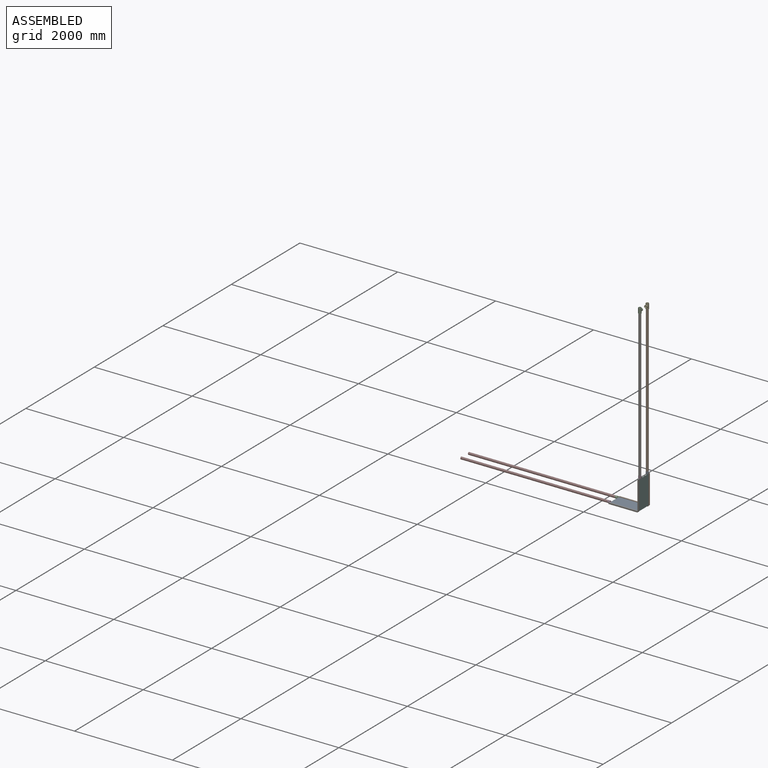
[diagram: assembled view]
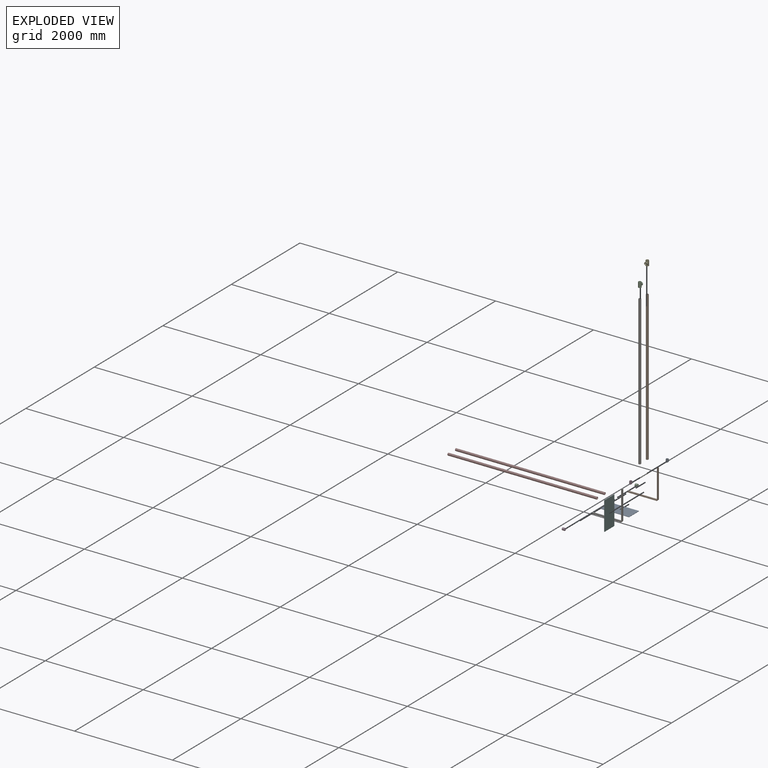
[diagram: exploded view]
GUIDED TOUR — MATED ASSEMBLY (Onshape document 8e0221e9044c78b43de1cfef, AutoMate assembly 8e0221e9044c78b43de1cfef_dc690e27e707710a3b595e1c_df8777a2fb92f2d2d3563340_default)

This assembly has 16 components, labeled P0..P15 below (a component is one placed occurrence of a part; the same part can appear more than once), held together by 22 mates. A mate is a constraint between two components; its type names the relative motion it leaves free:
  CYLINDRICAL — leaves both rotation about and translation along the listed axis free,
  PLANAR — leaves sliding in the plane through the listed point (normal = the listed direction) and rotation about that normal free.
Axis/direction vectors are unit vectors and 'through' points are millimeter coordinates, both in the assembly's world frame.

MATES
  1. CYLINDRICAL "Cylindrical 1": P13 <-> P14, axis (0.000, 1.000, 0.000) through (-967.79, 1430.48, -1423.84) mm
  2. PLANAR "Planar 6": P4 <-> P1, direction (0.000, 1.000, 0.000) through (-366.64, 1582.88, -822.67) mm
  3. CYLINDRICAL "Cylindrical 9": P12 <-> P9, axis (0.000, 0.000, 1.000) through (-366.64, 1526.75, 2232.19) mm
  4. CYLINDRICAL "Cylindrical 3": P8 <-> P4, axis (0.000, -1.000, 0.000) through (-366.64, 1508.97, -822.67) mm
  5. PLANAR "Planar 3": P1 <-> P0, direction (0.000, -1.000, 0.000) through (-670.07, 1565.10, -1425.53) mm
  6. CYLINDRICAL "Cylindrical 7": P10 <-> P13, axis (0.000, 1.000, 0.000) through (-967.79, 1553.93, -1423.84) mm
  7. PLANAR "Planar 7": P9 <-> P8, direction (0.000, 0.000, -1.000) through (-366.64, 1526.75, -815.81) mm
  8. PLANAR "Planar 4": P13 <-> P1, direction (0.000, 1.000, 0.000) through (-967.79, 1582.88, -1423.84) mm
  9. CYLINDRICAL "Cylindrical 5": P7 <-> P10, axis (1.000, 0.000, 0.000) through (-2498.65, 1536.15, -1423.84) mm
  10. PLANAR "Planar 8": P15 <-> P11, direction (1.000, 0.000, 0.000) through (-974.65, 1315.27, -1423.84) mm
  11. CYLINDRICAL "Cylindrical 6": P6 <-> P3, axis (0.000, 0.000, -1.000) through (-366.64, 1309.18, 708.19) mm
  12. CYLINDRICAL "Cylindrical 6": P15 <-> P11, axis (1.000, 0.000, 0.000) through (-2498.65, 1315.27, -1423.84) mm
  13. PLANAR "Planar 1": P5 <-> P14, direction (0.000, -1.000, 0.000) through (-365.68, 1275.54, -1121.14) mm
  14. PLANAR "Planar 2": P0 <-> P14, direction (0.000, -1.000, 0.000) through (-670.07, 1275.54, -1425.53) mm
  15. CYLINDRICAL "Cylindrical 5": P9 <-> P8, axis (0.000, 0.000, -1.000) through (-366.64, 1526.75, 708.19) mm
  16. PLANAR "Planar 7": P7 <-> P10, direction (1.000, 0.000, 0.000) through (-974.65, 1536.15, -1423.84) mm
  17. CYLINDRICAL "Cylindrical 8": P11 <-> P13, axis (0.000, 1.000, 0.000) through (-967.79, 1333.96, -1423.84) mm
  18. PLANAR "Planar 8": P6 <-> P3, direction (0.000, 0.000, -1.000) through (-366.64, 1309.18, -815.81) mm
  19. CYLINDRICAL "Cylindrical 4": P3 <-> P4, axis (0.000, 1.000, 0.000) through (-366.64, 1327.87, -822.67) mm
  20. CYLINDRICAL "Cylindrical 10": P2 <-> P6, axis (0.000, 0.000, 1.000) through (-366.64, 1309.18, 2232.19) mm
  21. CYLINDRICAL "Cylindrical 2": P4 <-> P14, axis (0.000, 1.000, 0.000) through (-366.64, 1278.08, -822.67) mm
  22. PLANAR "Planar 9": P9 <-> P12, direction (0.000, 0.000, 1.000) through (-366.64, 1526.75, 2232.19) mm

ASSEMBLY ORDER
  1. P9 — the base component [order verified]
  2. P6 [order verified]
  3. P3 [order verified]
  4. P8 [order verified]
  5. P12 [order verified]
  6. P2 [order verified]
  7. P15 [order verified]
  8. P7 [order verified]
  9. P11 [order verified]
  10. P10 [order verified]
  11. P5 [order verified]
  12. P4 [order verified]
  13. P13 [order verified]
  14. P0 [order verified]
  15. P14 [order verified]
  16. P1 [order verified]
Order-tag legend:
  [order verified] — this step's position reverses a verified removal order: the component was checked to insert without passing through the ones already placed.

Of the 16 components, 8 carry the full construction recipe — the FeatureScript program that regenerates the part's solid from scratch; the rest are supplied as boundary geometry only.
Because this assembly has more than 12 components, the tour below covers the 12 most significant ones individually (every recipe-attached component first, then the largest by part volume), in assembly order; the remaining 4 are summarized together in a grouped section at the end.
Each toured component is shown spotlighted twice — in the assembled view, then in the exploded view, where a leader line traces a displaced component back to its assembled socket (saturated green if recipe-attached, orange if geometry-only; every other component desaturated gray) — followed by its recipe or geometry summary and the mates that hold it.
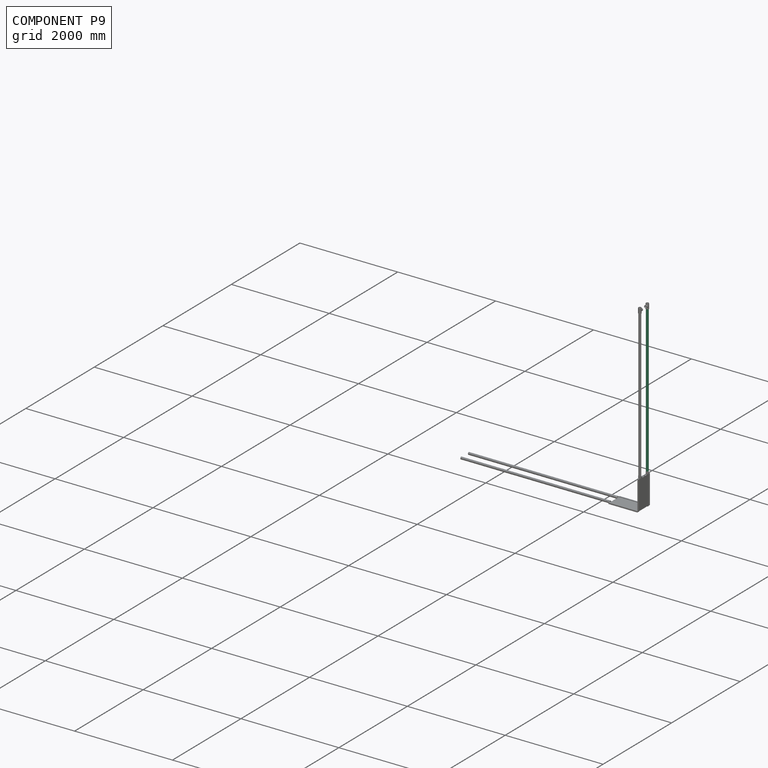
[diagram: component P9 — assembled]
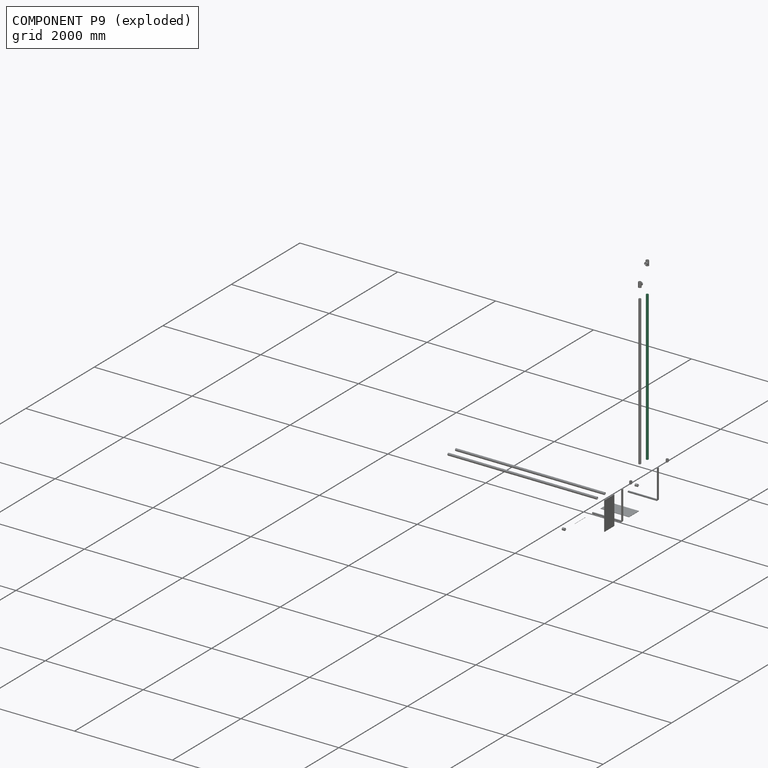
[diagram: component P9 — exploded]
COMPONENT P9 — same part as P6 (CADFS 00972674); its construction recipe is shown at P6.
Held by: CYLINDRICAL mate "Cylindrical 9" to P12; PLANAR mate "Planar 7" to P8; CYLINDRICAL mate "Cylindrical 5" to P8; PLANAR mate "Planar 9" to P12.
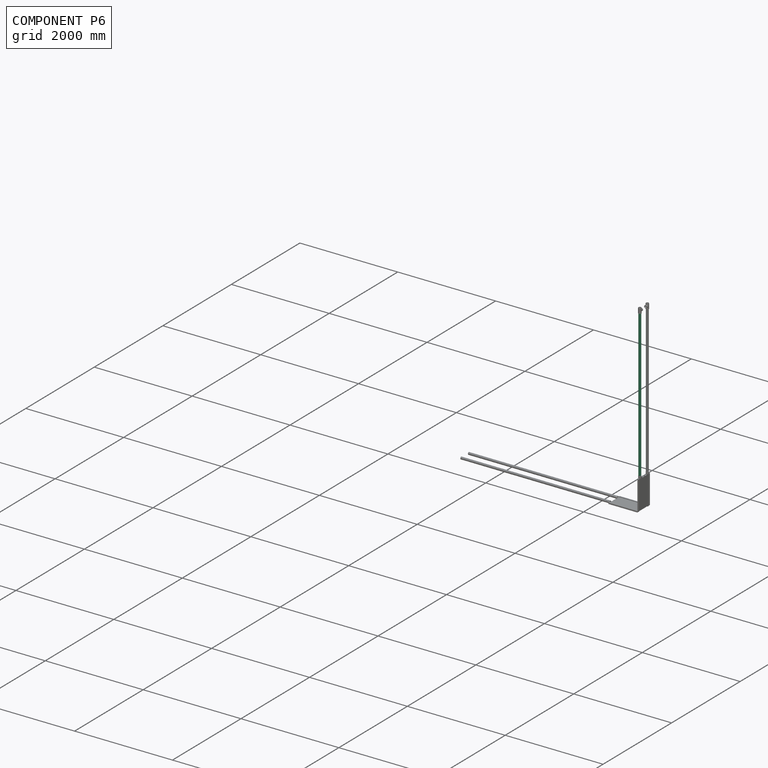
[diagram: component P6 — assembled]
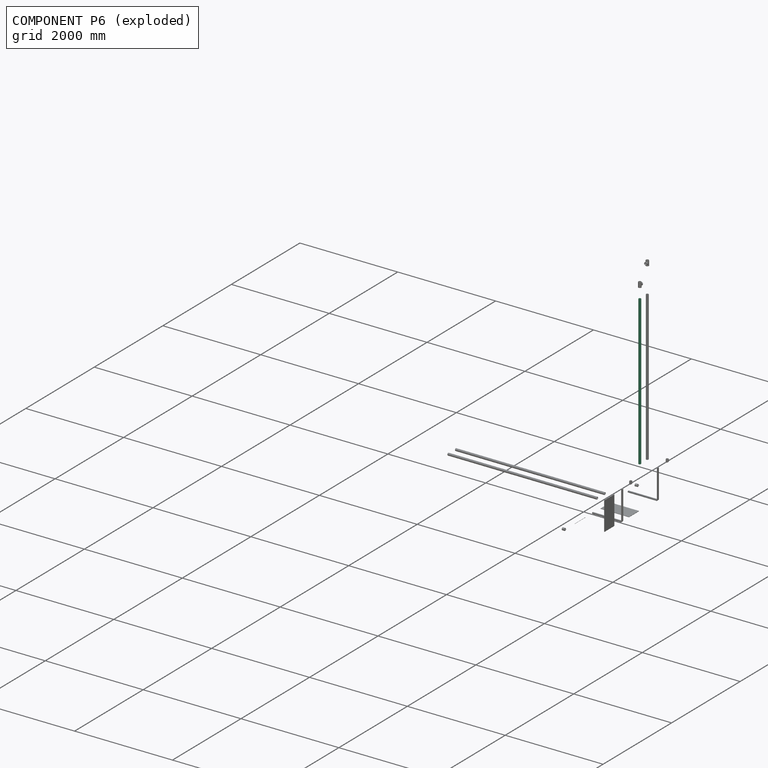
[diagram: component P6 — exploded]
COMPONENT P6 — recipe-attached (CADFS 00972674, mesh-verified: the recipe's output STEP matches this component's geometry to below the mesh-comparison resolution (tessellation chordal tolerance ~4.57 mm)).
Held by: CYLINDRICAL mate "Cylindrical 6" to P3; PLANAR mate "Planar 8" to P3; CYLINDRICAL mate "Cylindrical 10" to P2.
Construction recipe (FeatureScript — the CAD program that rebuilds this solid; sketch coordinates are in the units given by the * unit suffixes, e.g. mm):

FeatureScript 1511;
import(path : "onshape/std/geometry.fs", version : "1511.0");
import(path : "onshape/std/common.fs", version : "1511.0");
const mm = millimeter;
const VERTEX = EntityType.VERTEX;
const EDGE = EntityType.EDGE;
const FACE = EntityType.FACE;
const BODY = EntityType.BODY;
function v(x, y){return vector(x, y);}
function OD(order){return orderDisambiguation(order);}
function OSD(set){return originalSetDisambiguation(set);}
function TD(topology){return topologyDisambiguation(topology);}
function TDD(query){return trueDependencyDisambiguation(query);}
function sQuery(a, b, c) {return sketchEntityQuery(a, b, c);}

annotation { "Feature Type Name" : "Feature", "Feature Type Description" : "" }
export const myFeature = defineFeature(function(context is Context, id is Id, definition is map)
    precondition{}
    {
        {
            var Q0;
            Q0=qCreatedBy(makeId("Top.planeOp"),FACE);
            var sketch = newSketch(context, id + "F0", { "sketchPlane" : qUnion([Q0])});
            skCircle(sketch, "E0", {"center": v(0, 0) * mm, "radius": 24.13 * mm});
            skCircle(sketch, "E1", {"center": v(0, 0) * mm, "radius": 20.45 * mm});
            skSolve(sketch);
        }
        {
            var Q0;
            Q0 = qSketchRegion(id + "F0", true);
            extrude(context, id + "F1", {"entities" : qUnion([Q0]), "depth" : 3048 * mm, "offsetDistance" : 25.4 * mm});
        }
    });
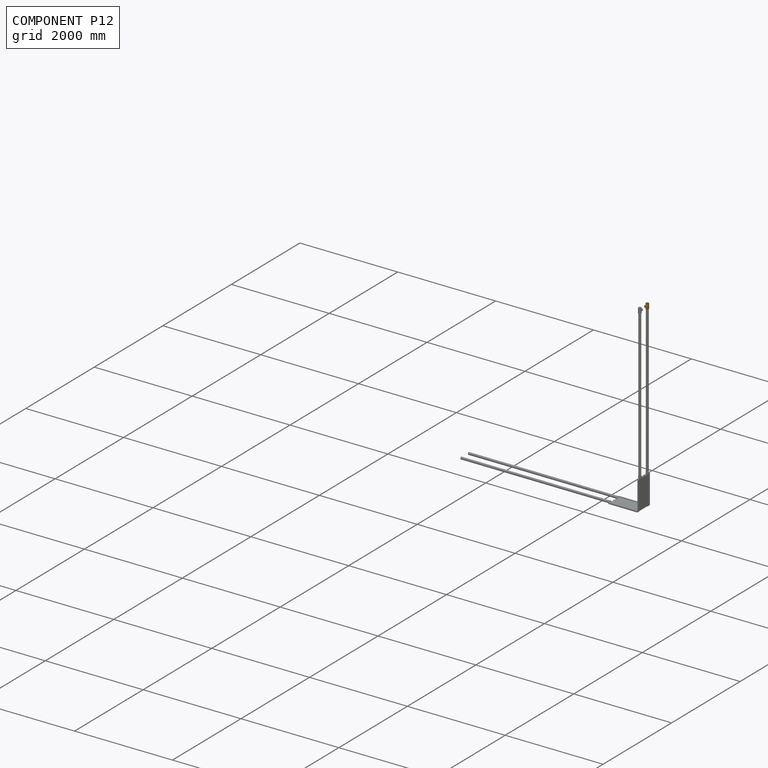
[diagram: component P12 — assembled]
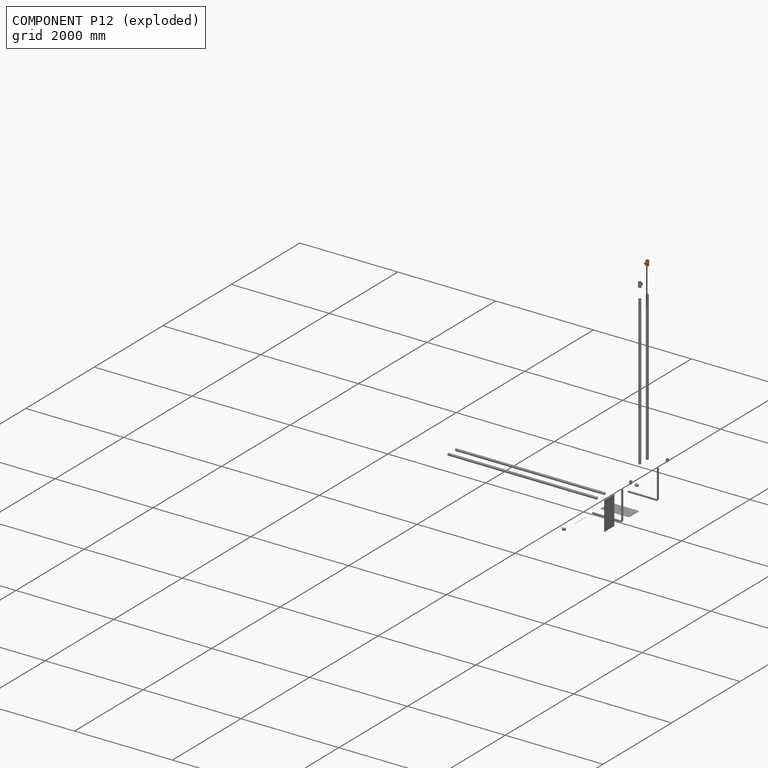
[diagram: component P12 — exploded]
COMPONENT P12 — geometry summary (no construction recipe available for this part):
  bounding box: 101.6 x 81.3 x 61.0 mm
  B-rep topology: 1 solid, 24 faces, 96 edges
  volume: 116307 mm^3 (23% of its bounding box)
  symmetry: 2-fold rotationally symmetric about the z axis; mirror-symmetric across its x mid-plane, y mid-plane
Held by: CYLINDRICAL mate "Cylindrical 9" to P9; PLANAR mate "Planar 9" to P9.
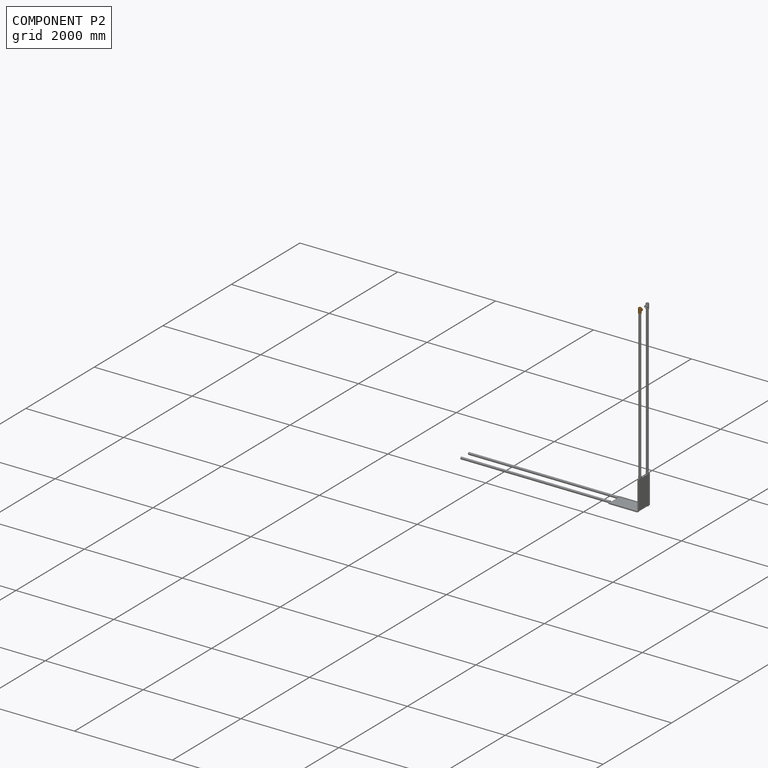
[diagram: component P2 — assembled]
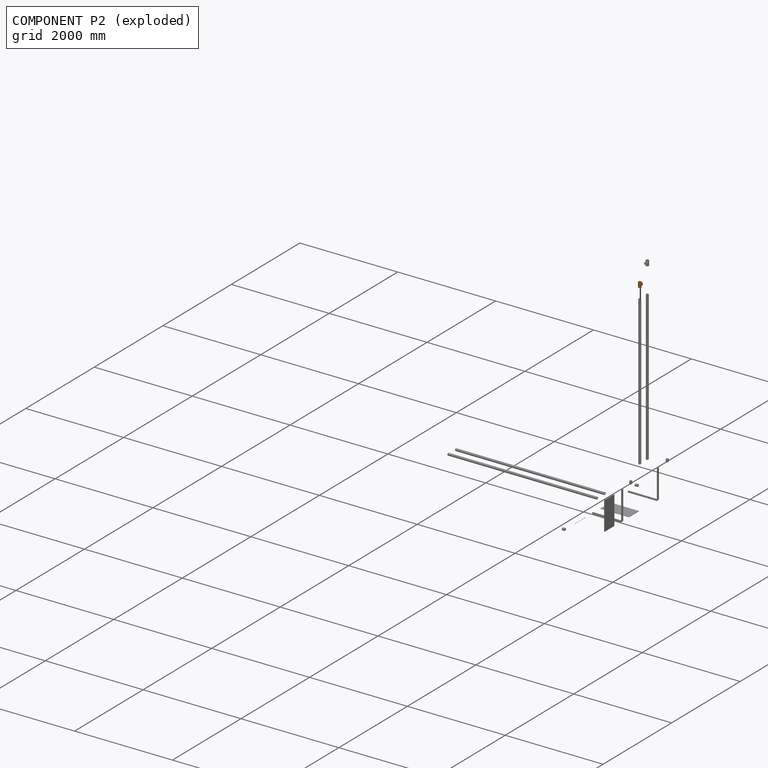
[diagram: component P2 — exploded]
COMPONENT P2 — geometry summary (no construction recipe available for this part):
  bounding box: 101.6 x 81.3 x 61.0 mm
  B-rep topology: 1 solid, 24 faces, 96 edges
  volume: 116307 mm^3 (23% of its bounding box)
  symmetry: 2-fold rotationally symmetric about the z axis; mirror-symmetric across its x mid-plane, y mid-plane
Held by: CYLINDRICAL mate "Cylindrical 10" to P6.
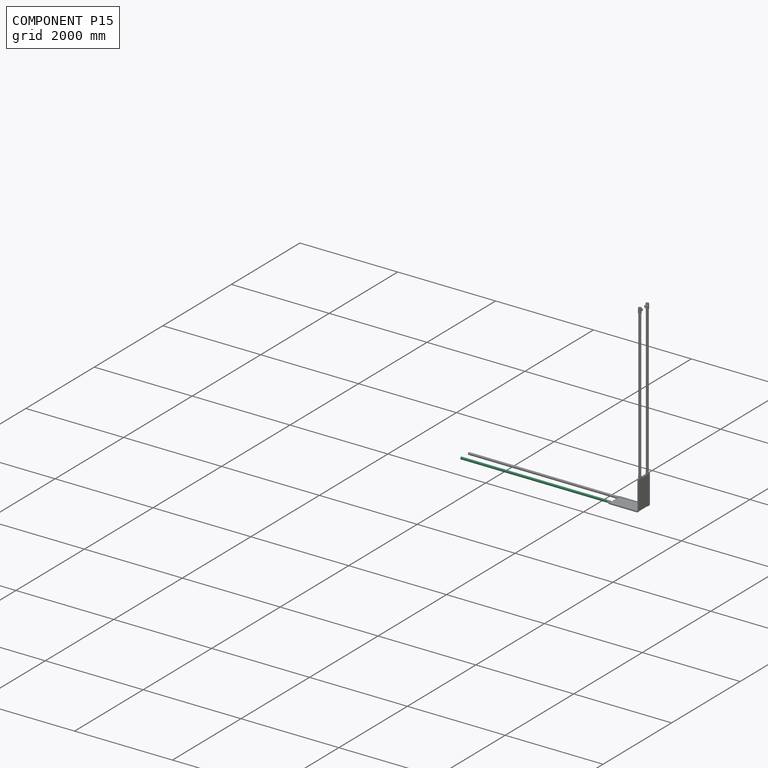
[diagram: component P15 — assembled]
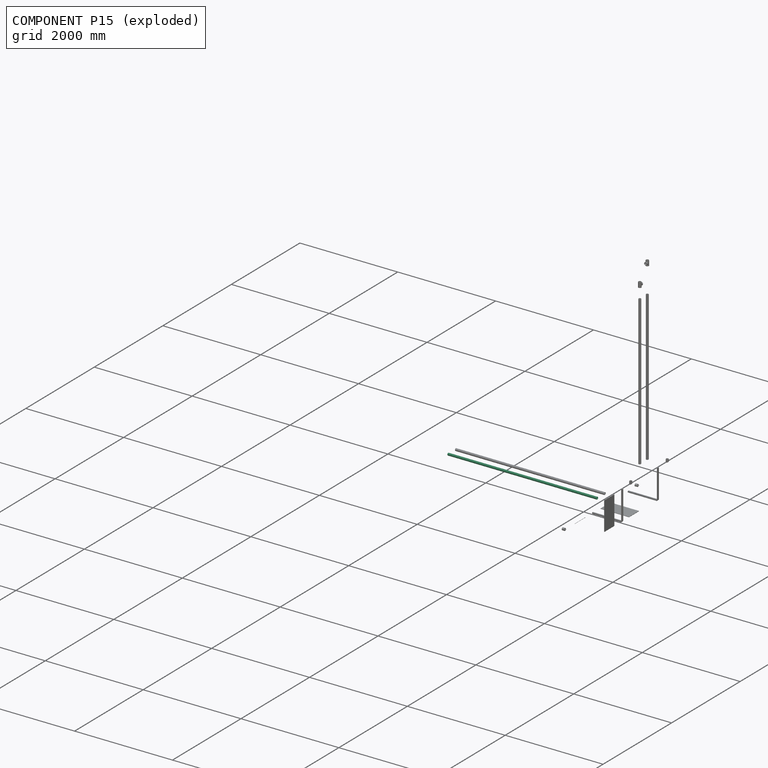
[diagram: component P15 — exploded]
COMPONENT P15 — same part as P6 (CADFS 00972674); its construction recipe is shown at P6.
Held by: PLANAR mate "Planar 8" to P11; CYLINDRICAL mate "Cylindrical 6" to P11.
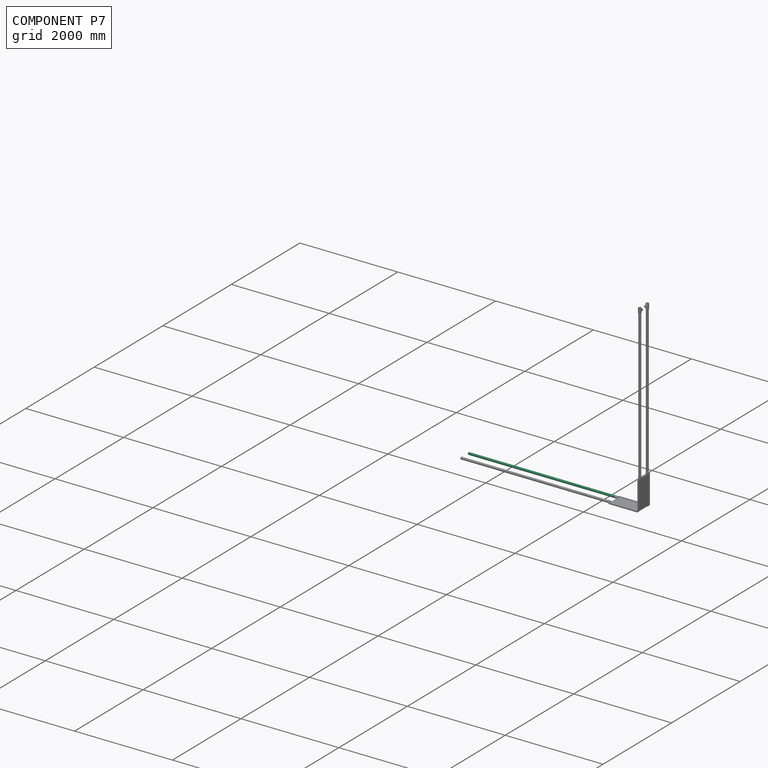
[diagram: component P7 — assembled]
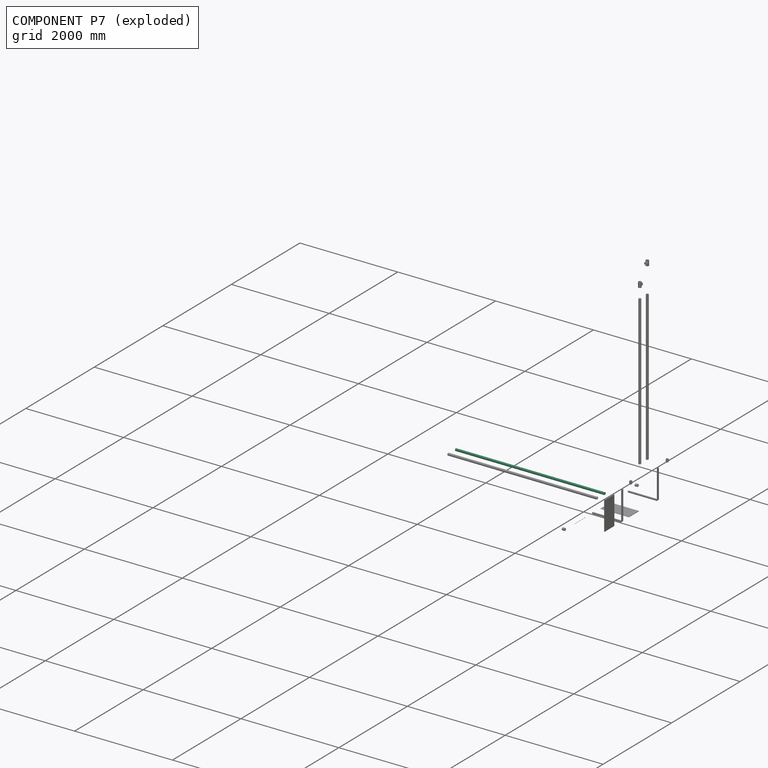
[diagram: component P7 — exploded]
COMPONENT P7 — same part as P6 (CADFS 00972674); its construction recipe is shown at P6.
Held by: CYLINDRICAL mate "Cylindrical 5" to P10; PLANAR mate "Planar 7" to P10.
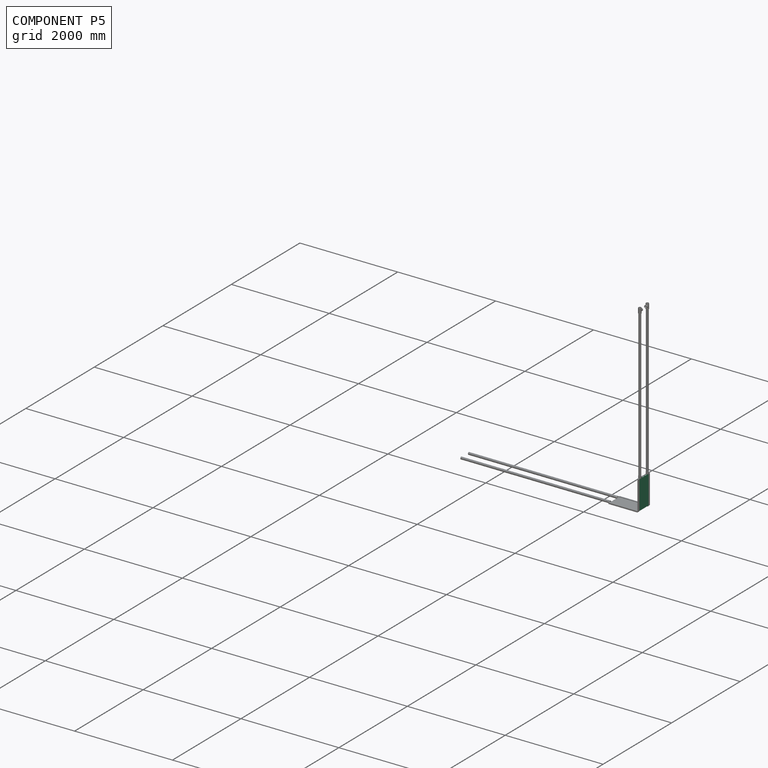
[diagram: component P5 — assembled]
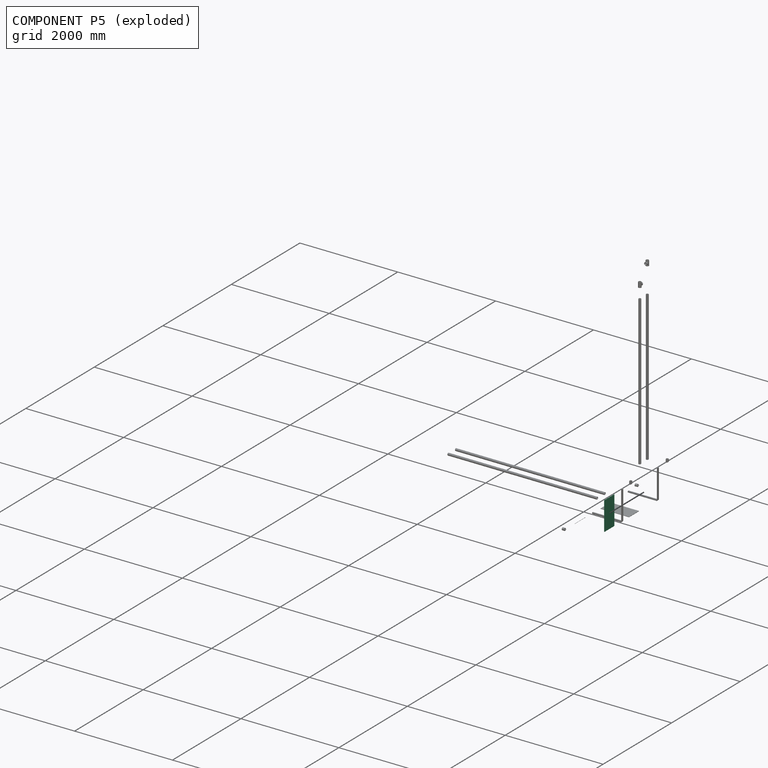
[diagram: component P5 — exploded]
COMPONENT P5 — same part as P0 (CADFS 00972740); its construction recipe is shown at P0.
Held by: PLANAR mate "Planar 1" to P14.
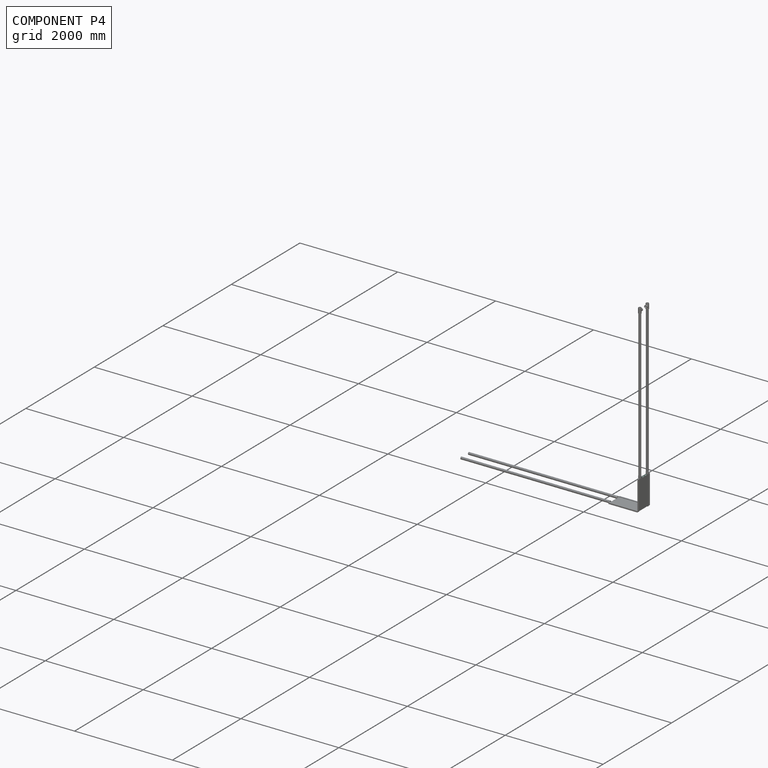
[diagram: component P4 — assembled]
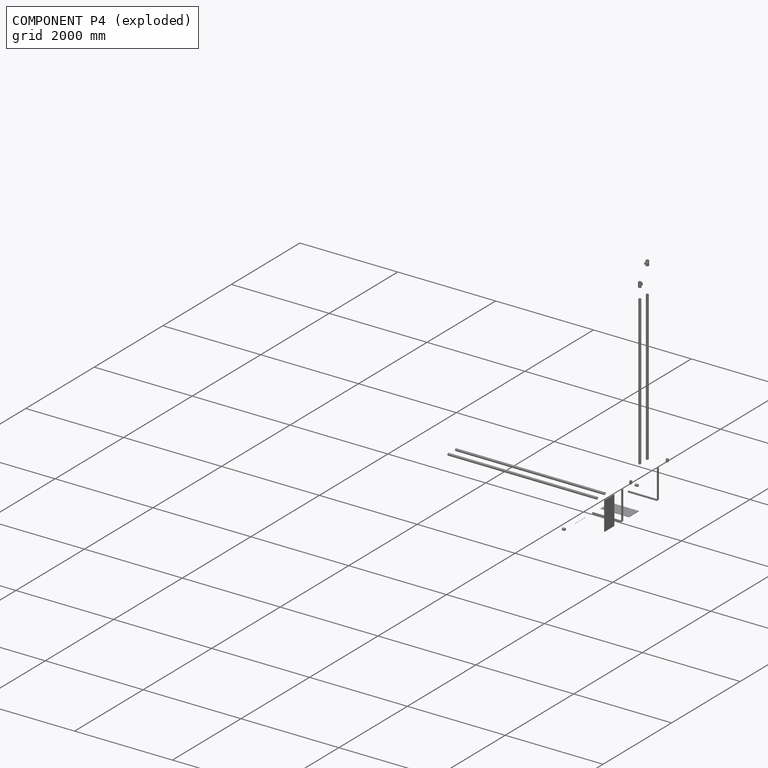
[diagram: component P4 — exploded]
COMPONENT P4 — recipe-attached (CADFS 00972745, mesh-verified: the recipe's output STEP matches this component's geometry to below the mesh-comparison resolution (tessellation chordal tolerance ~0.457 mm)).
Held by: PLANAR mate "Planar 6" to P1; CYLINDRICAL mate "Cylindrical 3" to P8; CYLINDRICAL mate "Cylindrical 4" to P3; CYLINDRICAL mate "Cylindrical 2" to P14.
Construction recipe (FeatureScript — the CAD program that rebuilds this solid; sketch coordinates are in the units given by the * unit suffixes, e.g. mm):

FeatureScript 1511;
import(path : "onshape/std/geometry.fs", version : "1511.0");
import(path : "onshape/std/common.fs", version : "1511.0");
const mm = millimeter;
const VERTEX = EntityType.VERTEX;
const EDGE = EntityType.EDGE;
const FACE = EntityType.FACE;
const BODY = EntityType.BODY;
function v(x, y){return vector(x, y);}
function OD(order){return orderDisambiguation(order);}
function OSD(set){return originalSetDisambiguation(set);}
function TD(topology){return topologyDisambiguation(topology);}
function TDD(query){return trueDependencyDisambiguation(query);}
function sQuery(a, b, c) {return sketchEntityQuery(a, b, c);}

annotation { "Feature Type Name" : "Feature", "Feature Type Description" : "" }
export const myFeature = defineFeature(function(context is Context, id is Id, definition is map)
    precondition{}
    {
        {
            var Q0;
            Q0=qCreatedBy(makeId("Front.planeOp"),FACE);
            var sketch = newSketch(context, id + "F0", { "sketchPlane" : qUnion([Q0])});
            skCircle(sketch, "E0", {"center": v(1.26, 0) * mm, "radius": 2.54 * mm});
            skSolve(sketch);
        }
        {
            var Q0;
            Q0 = qSketchRegion(id + "F0", true);
            extrude(context, id + "F1", {"entities" : qUnion([Q0]), "depth" : 304.8 * mm, "offsetDistance" : 25.4 * mm});
        }
    });
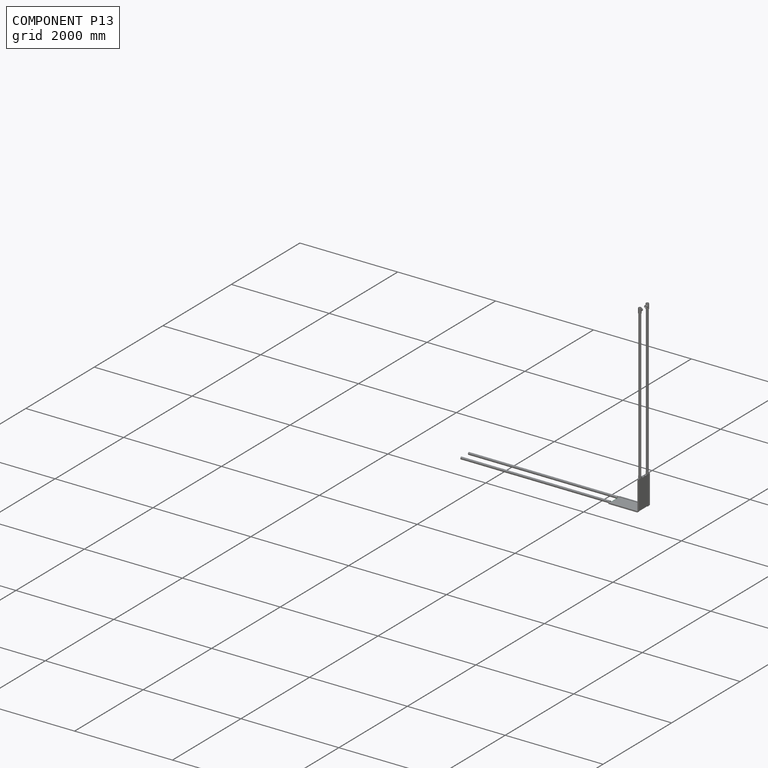
[diagram: component P13 — assembled]
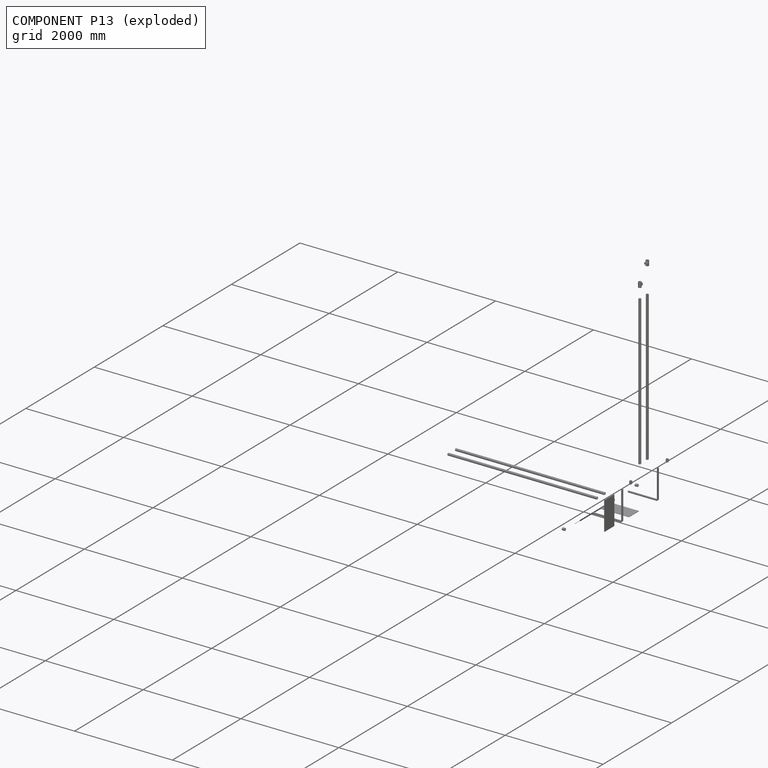
[diagram: component P13 — exploded]
COMPONENT P13 — same part as P4 (CADFS 00972745); its construction recipe is shown at P4.
Held by: CYLINDRICAL mate "Cylindrical 1" to P14; CYLINDRICAL mate "Cylindrical 7" to P10; PLANAR mate "Planar 4" to P1; CYLINDRICAL mate "Cylindrical 8" to P11.
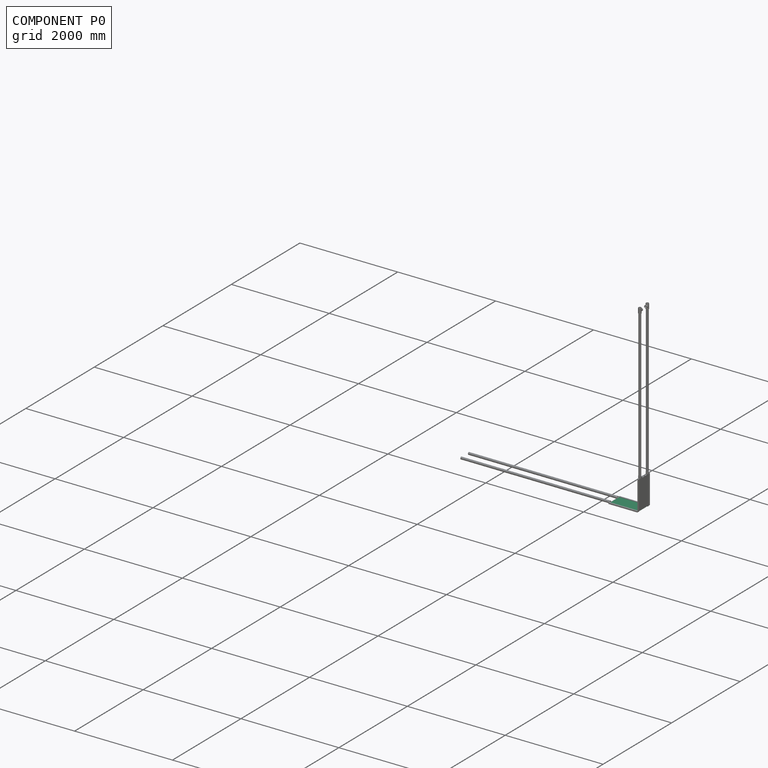
[diagram: component P0 — assembled]
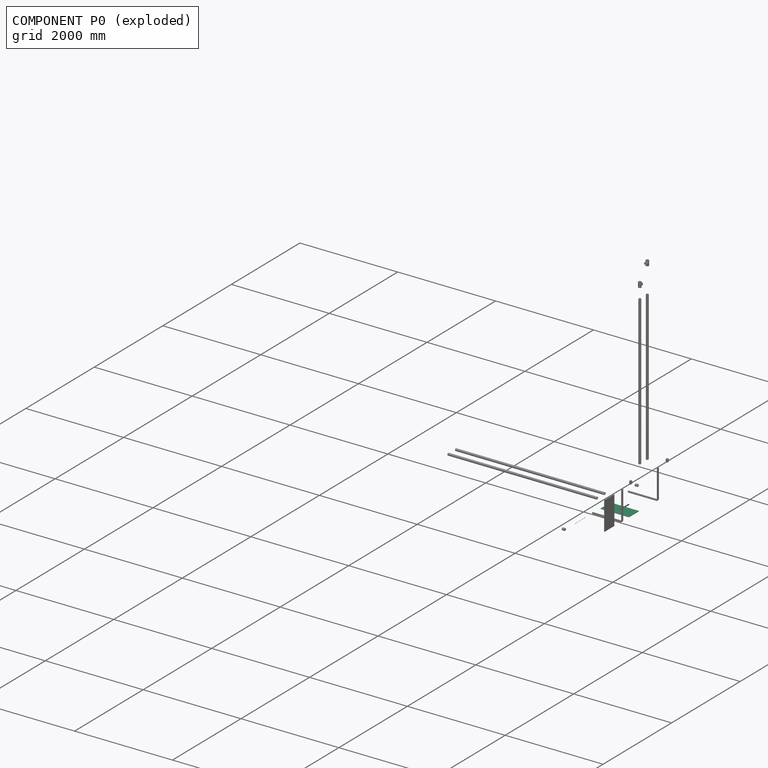
[diagram: component P0 — exploded]
COMPONENT P0 — recipe-attached (CADFS 00972740, mesh-verified: the recipe's output STEP matches this component's geometry to below the mesh-comparison resolution (tessellation chordal tolerance ~0.977 mm)).
Held by: PLANAR mate "Planar 3" to P1; PLANAR mate "Planar 2" to P14.
Construction recipe (FeatureScript — the CAD program that rebuilds this solid; sketch coordinates are in the units given by the * unit suffixes, e.g. mm):

FeatureScript 1511;
import(path : "onshape/std/geometry.fs", version : "1511.0");
import(path : "onshape/std/common.fs", version : "1511.0");
const mm = millimeter;
const VERTEX = EntityType.VERTEX;
const EDGE = EntityType.EDGE;
const FACE = EntityType.FACE;
const BODY = EntityType.BODY;
function v(x, y){return vector(x, y);}
function OD(order){return orderDisambiguation(order);}
function OSD(set){return originalSetDisambiguation(set);}
function TD(topology){return topologyDisambiguation(topology);}
function TDD(query){return trueDependencyDisambiguation(query);}
function sQuery(a, b, c) {return sketchEntityQuery(a, b, c);}

annotation { "Feature Type Name" : "Feature", "Feature Type Description" : "" }
export const myFeature = defineFeature(function(context is Context, id is Id, definition is map)
    precondition{}
    {
        {
            var Q0;
            Q0=qCreatedBy(makeId("Front.planeOp"),FACE);
            var sketch = newSketch(context, id + "F0", { "sketchPlane" : qUnion([Q0])});
            skLineSegment(sketch, "E0.bottom", {"start": v(5.83, 0) * mm, "end": v(295.4, 0) * mm});
            skLineSegment(sketch, "E0.top", {"start": v(5.83, 583.39) * mm, "end": v(295.4, 583.39) * mm});
            skLineSegment(sketch, "E0.left", {"start": v(5.83, 0) * mm, "end": v(5.83, 583.39) * mm});
            skLineSegment(sketch, "E0.right", {"start": v(295.4, 0) * mm, "end": v(295.4, 583.39) * mm});
            skSolve(sketch);
        }
        {
            var Q0;
            Q0 = qSketchRegion(id + "F0", true);
            extrude(context, id + "F1", {"entities" : qUnion([Q0]), "depth" : 7.62 * mm, "offsetDistance" : 25.4 * mm});
        }
    });
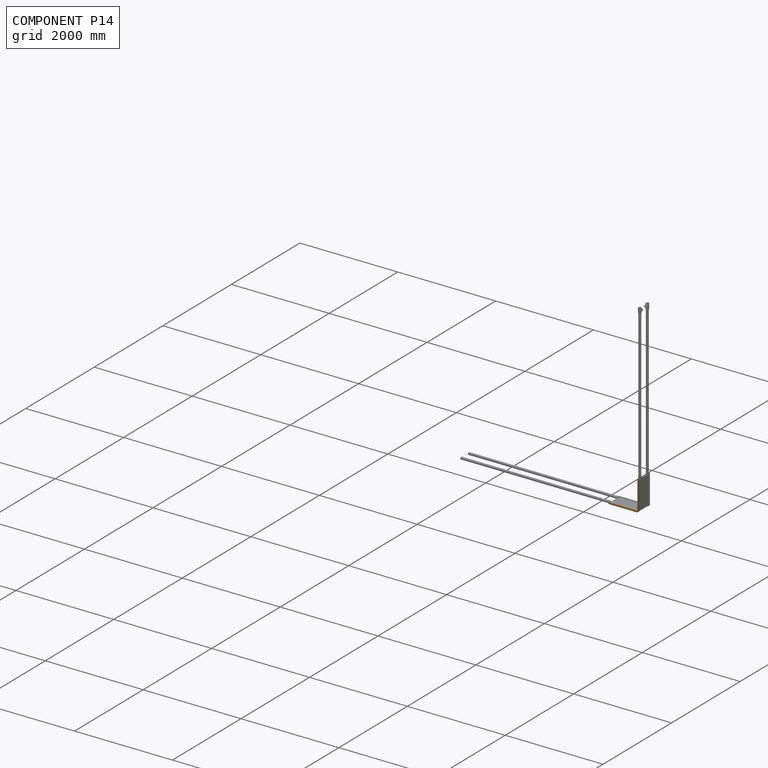
[diagram: component P14 — assembled]
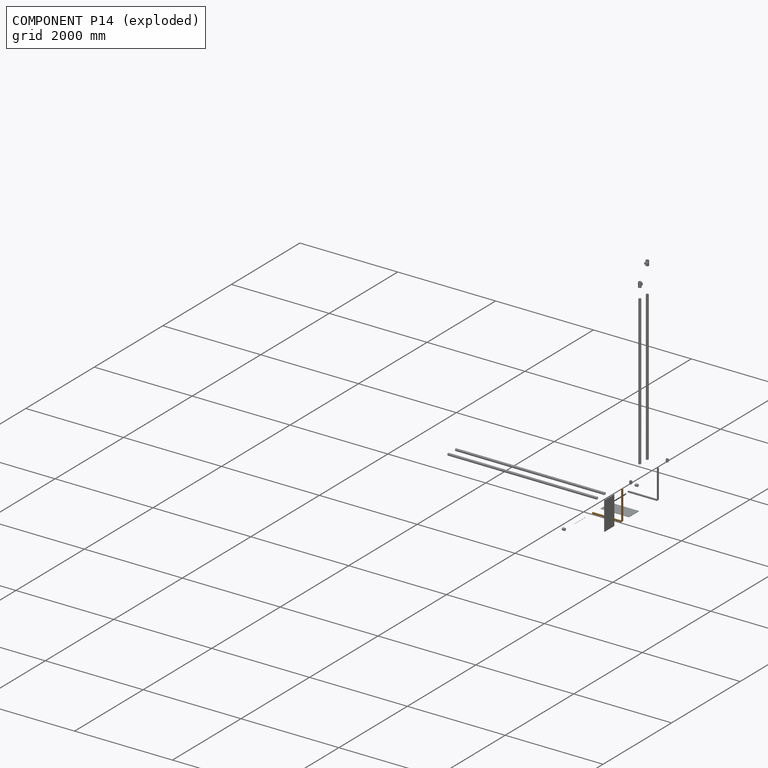
[diagram: component P14 — exploded]
COMPONENT P14 — geometry summary (no construction recipe available for this part):
  bounding box: 618.9 x 618.9 x 25.4 mm
  B-rep topology: 1 solid, 21 faces, 106 edges
  volume: 727857 mm^3 (7% of its bounding box)
Held by: CYLINDRICAL mate "Cylindrical 1" to P13; PLANAR mate "Planar 1" to P5; PLANAR mate "Planar 2" to P0; CYLINDRICAL mate "Cylindrical 2" to P4.
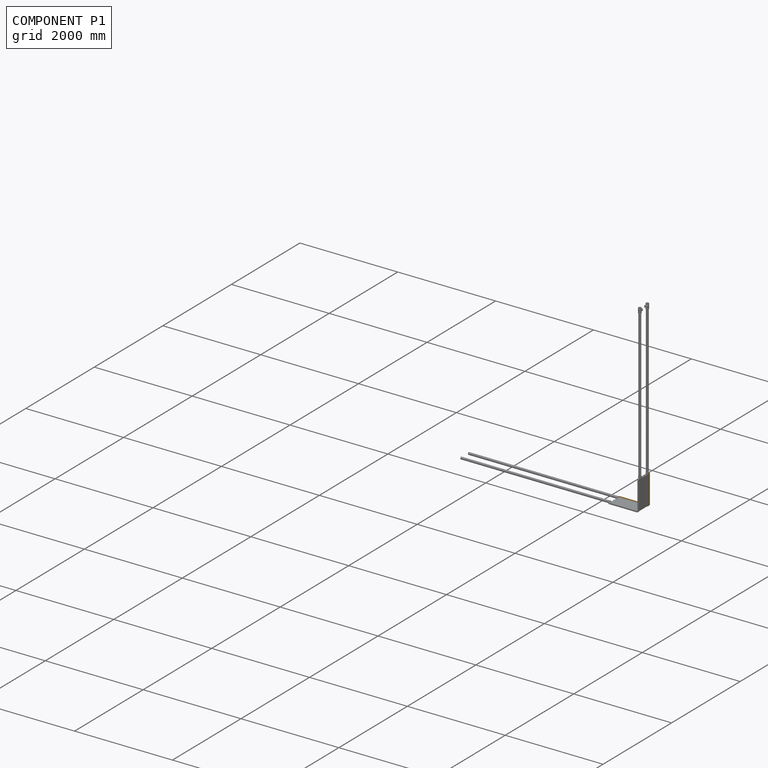
[diagram: component P1 — assembled]
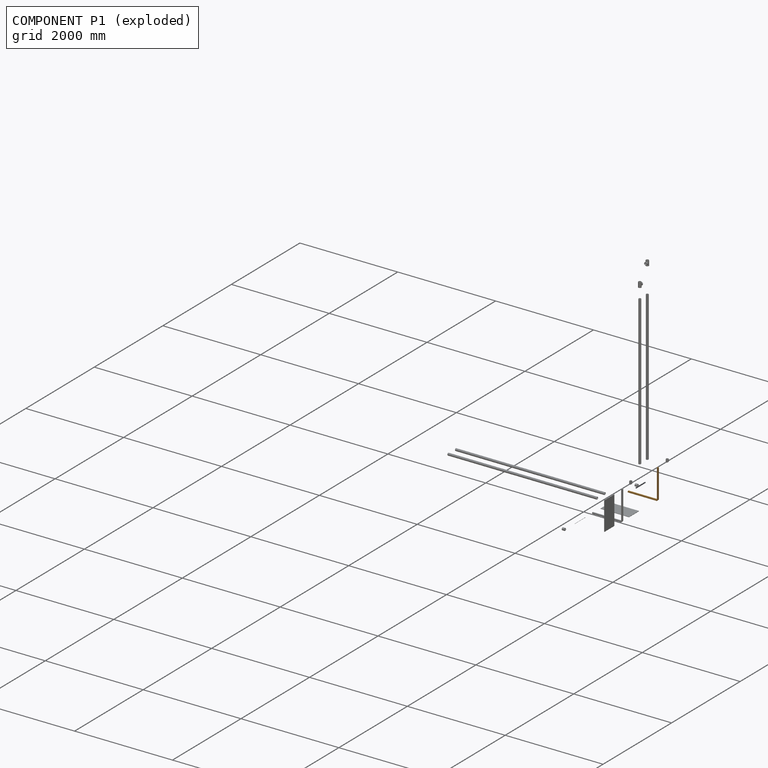
[diagram: component P1 — exploded]
COMPONENT P1 — geometry summary (no construction recipe available for this part):
  bounding box: 618.9 x 618.9 x 25.4 mm
  B-rep topology: 1 solid, 21 faces, 106 edges
  volume: 727857 mm^3 (7% of its bounding box)
Held by: PLANAR mate "Planar 6" to P4; PLANAR mate "Planar 3" to P0; PLANAR mate "Planar 4" to P13.
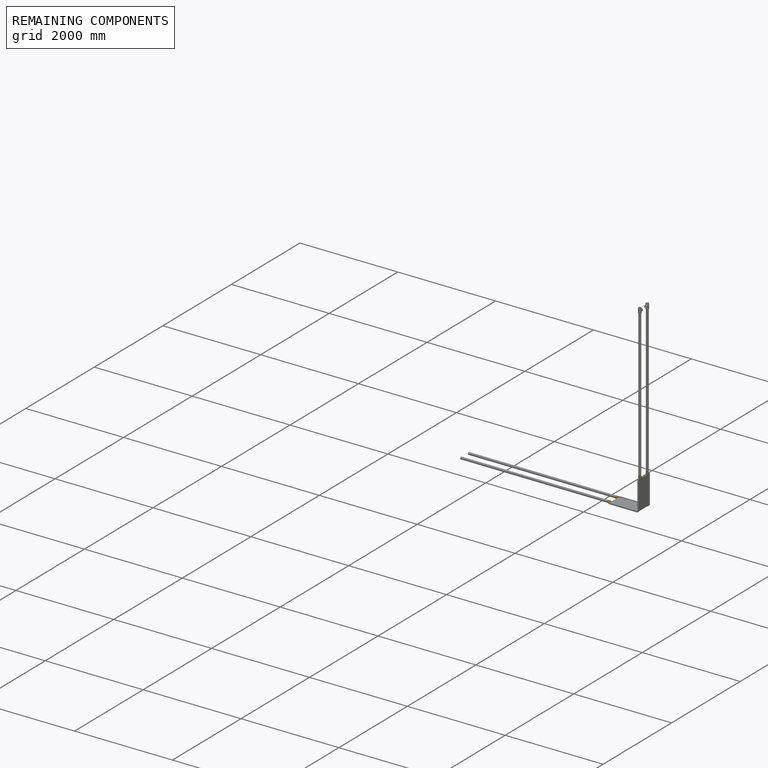
[diagram: remaining components — assembled]
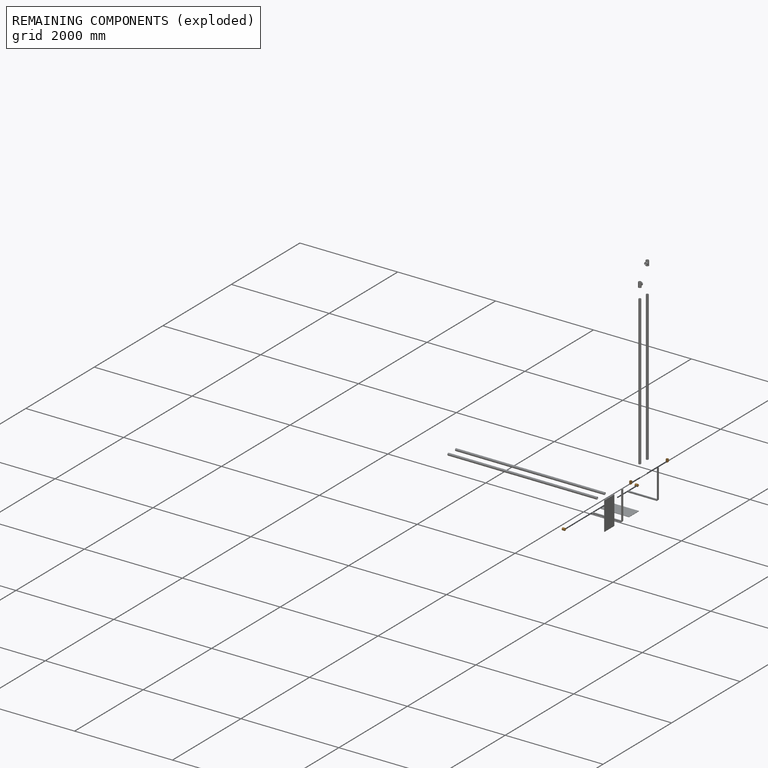
[diagram: remaining components — exploded]
REMAINING COMPONENTS (grouped) — the 4 components below fall outside the per-component tour by the significance rule stated above; both spotlight views highlight the whole group.
  P3: bounding box 63.8 x 50.8 x 50.8 mm, volume 42750 mm^3. Held by: CYLINDRICAL mate "Cylindrical 6" to P6; PLANAR mate "Planar 8" to P6; CYLINDRICAL mate "Cylindrical 4" to P4.
  P8: bounding box 63.8 x 50.8 x 50.8 mm, volume 42750 mm^3. Held by: CYLINDRICAL mate "Cylindrical 3" to P4; PLANAR mate "Planar 7" to P9; CYLINDRICAL mate "Cylindrical 5" to P9.
  P11: bounding box 63.8 x 50.8 x 50.8 mm, volume 42750 mm^3. Held by: PLANAR mate "Planar 8" to P15; CYLINDRICAL mate "Cylindrical 6" to P15; CYLINDRICAL mate "Cylindrical 8" to P13.
  P10: bounding box 63.8 x 50.8 x 50.8 mm, volume 42750 mm^3. Held by: CYLINDRICAL mate "Cylindrical 7" to P13; CYLINDRICAL mate "Cylindrical 5" to P7; PLANAR mate "Planar 7" to P7.
PROVENANCE & LICENSES
Assembly (occurrences, transforms, mates, per-part STEP geometry): AutoMate dataset, Zenodo record 7776208, CC0.
Construction recipes: CADFS (HuggingFace VladPyatov/CADFS, CC-BY-4.0, layered over the ABC dataset), FeatureScript reconstruction programs keyed by ABC model id.
Join: ABC meta listings map ABC model id -> Onshape documentId; within a shared document, parts are matched by geometric signature (bounding-box dims + volume at 0.1% relative tolerance, exact B-rep face/solid counts).
Verification: 8 of this assembly's 16 components carry a recipe attachment, and every attachment is mesh-verified: the CADFS STEP and the AutoMate member STEP were compared as meshes in their shared local frame (symmetric sampled-point-to-mesh distance); worst across the 8 attachments: below the mesh-comparison resolution (tessellation chordal tolerance ~4.57 mm) on a 3049 mm part.
Renders: orthographic iso camera (az 35 / el 25); the floor grid conveys scale (grid pitch printed in each image; no ruler). In the exploded view each component is displaced by its stored offset vector: the offsets alone carry the explosion direction (mate normal/axis signs are not orientation cues and do not encode it), and separation distances are assigned per mate-chain, not proportionally to assembly-order depth.
